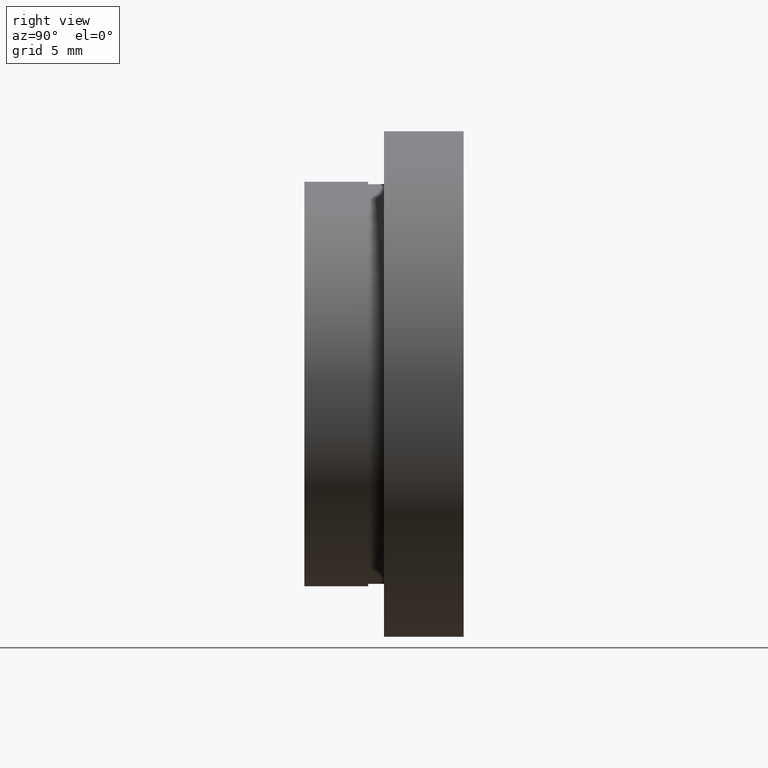
[diagram: clean part render]
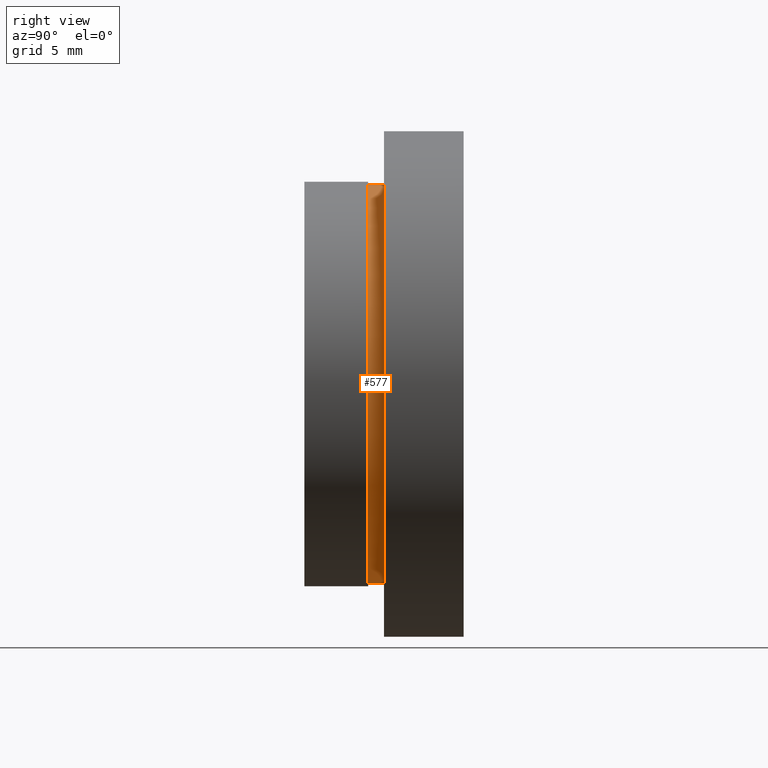
[diagram: same view with one face highlighted and labeled with its STEP entity id]
A machine part, right view. The second image highlights one B-rep face of the part: STEP entity #577.
In plain terms, the highlighted cylindrical surface (partial cylindrical patch) has radius 12.55 mm, axis along (-0, 1, -0).
Its self-contained STEP definition (entity closure, byte-faithful):
#3 = AXIS2_PLACEMENT_3D ( 'NONE', #190, #290, #229 ) ;
#13 = EDGE_CURVE ( 'NONE', #619, #624, #74, .T. ) ;
#15 = CARTESIAN_POINT ( 'NONE',  ( 1.536931732929928400E-015, 4.000000000000000000, -12.55000000000000100 ) ) ;
#57 = VECTOR ( 'NONE', #376, 1000.000000000000000 ) ;
#64 = ORIENTED_EDGE ( 'NONE', *, *, #13, .T. ) ;
#71 = DIRECTION ( 'NONE',  ( 0.0000000000000000000, 0.0000000000000000000, 1.000000000000000000 ) ) ;
#74 = LINE ( 'NONE', #396, #57 ) ;
#115 = CYLINDRICAL_SURFACE ( 'NONE', #614, 12.55000000000000100 ) ;
#119 = EDGE_LOOP ( 'NONE', ( #142, #64, #176, #245 ) ) ;
#121 = CARTESIAN_POINT ( 'NONE',  ( 0.0000000000000000000, 5.000000000000000900, 0.0000000000000000000 ) ) ;
#142 = ORIENTED_EDGE ( 'NONE', *, *, #343, .T. ) ;
#161 = DIRECTION ( 'NONE',  ( -0.0000000000000000000, 1.000000000000000000, -0.0000000000000000000 ) ) ;
#176 = ORIENTED_EDGE ( 'NONE', *, *, #611, .F. ) ;
#190 = CARTESIAN_POINT ( 'NONE',  ( 0.0000000000000000000, 4.000000000000000000, 0.0000000000000000000 ) ) ;
#229 = DIRECTION ( 'NONE',  ( 0.0000000000000000000, 0.0000000000000000000, 1.000000000000000000 ) ) ;
#245 = ORIENTED_EDGE ( 'NONE', *, *, #622, .F. ) ;
#259 = CARTESIAN_POINT ( 'NONE',  ( 1.536931732929928400E-015, 5.000000000000000900, -12.55000000000000100 ) ) ;
#266 = CARTESIAN_POINT ( 'NONE',  ( 0.0000000000000000000, 13.74468085106383300, 0.0000000000000000000 ) ) ;
#284 = FACE_OUTER_BOUND ( 'NONE', #119, .T. ) ;
#290 = DIRECTION ( 'NONE',  ( -0.0000000000000000000, 1.000000000000000000, -0.0000000000000000000 ) ) ;
#292 = AXIS2_PLACEMENT_3D ( 'NONE', #121, #406, #71 ) ;
#319 = DIRECTION ( 'NONE',  ( -0.0000000000000000000, 1.000000000000000000, -0.0000000000000000000 ) ) ;
#343 = EDGE_CURVE ( 'NONE', #351, #619, #423, .T. ) ;
#351 = VERTEX_POINT ( 'NONE', #498 ) ;
#352 = CARTESIAN_POINT ( 'NONE',  ( 0.0000000000000000000, 13.74468085106383300, 12.55000000000000100 ) ) ;
#376 = DIRECTION ( 'NONE',  ( -0.0000000000000000000, 1.000000000000000000, -0.0000000000000000000 ) ) ;
#391 = CIRCLE ( 'NONE', #292, 12.55000000000000100 ) ;
#396 = CARTESIAN_POINT ( 'NONE',  ( 1.536931732929928400E-015, 13.74468085106383300, -12.55000000000000100 ) ) ;
#398 = LINE ( 'NONE', #352, #446 ) ;
#406 = DIRECTION ( 'NONE',  ( -0.0000000000000000000, 1.000000000000000000, -0.0000000000000000000 ) ) ;
#423 = CIRCLE ( 'NONE', #3, 12.55000000000000100 ) ;
#446 = VECTOR ( 'NONE', #161, 1000.000000000000000 ) ;
#473 = CARTESIAN_POINT ( 'NONE',  ( 0.0000000000000000000, 5.000000000000000900, 12.55000000000000100 ) ) ;
#498 = CARTESIAN_POINT ( 'NONE',  ( 0.0000000000000000000, 4.000000000000000000, 12.55000000000000100 ) ) ;
#577 = ADVANCED_FACE ( 'NONE', ( #284 ), #115, .T. ) ;
#589 = VERTEX_POINT ( 'NONE', #473 ) ;
#605 = DIRECTION ( 'NONE',  ( 0.0000000000000000000, 0.0000000000000000000, 1.000000000000000000 ) ) ;
#611 = EDGE_CURVE ( 'NONE', #589, #624, #391, .T. ) ;
#614 = AXIS2_PLACEMENT_3D ( 'NONE', #266, #319, #605 ) ;
#619 = VERTEX_POINT ( 'NONE', #15 ) ;
#622 = EDGE_CURVE ( 'NONE', #351, #589, #398, .T. ) ;
#624 = VERTEX_POINT ( 'NONE', #259 ) ;